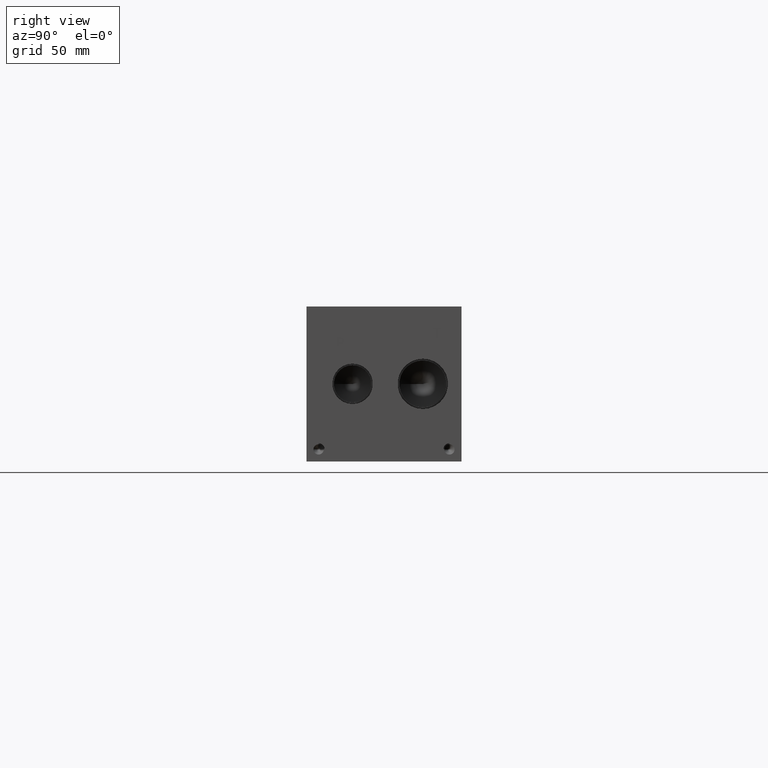
[diagram: clean part render]
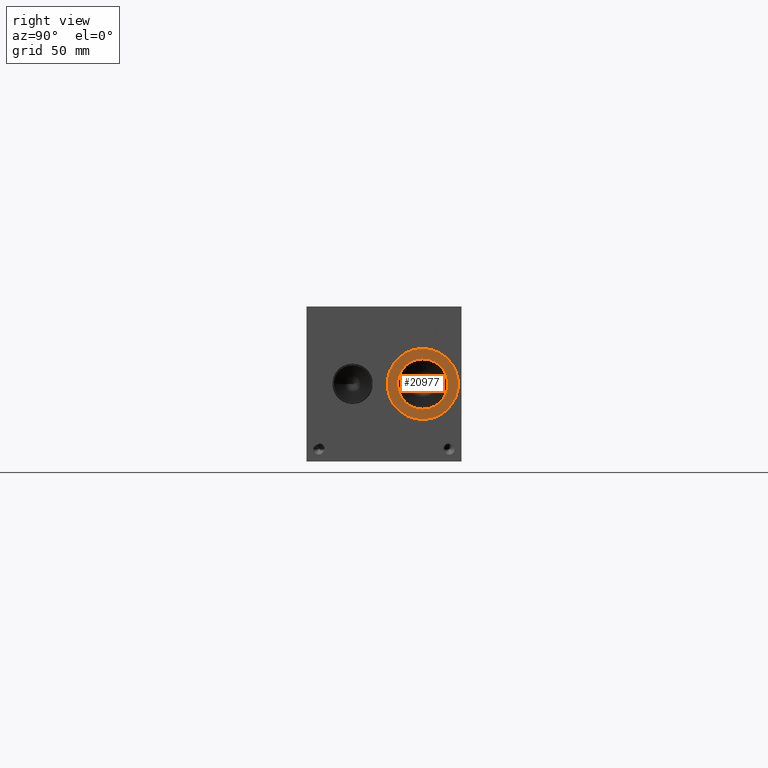
[diagram: same view with one face highlighted and labeled with its STEP entity id]
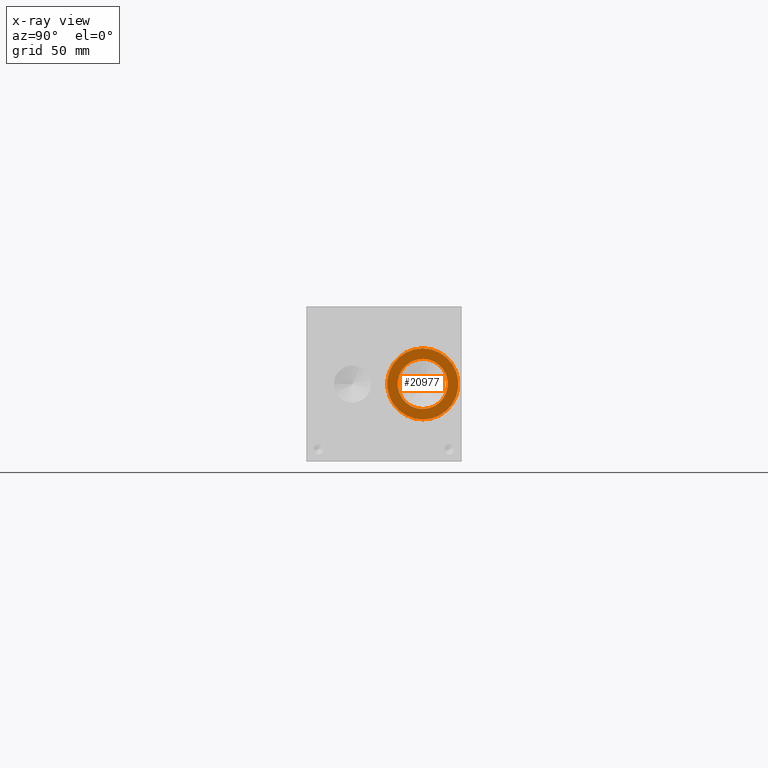
[diagram: x-ray of the same camera — body ghosted, the highlighted face saturated]
A machine part, right view. The second image highlights one B-rep face of the part: STEP entity #20977.
The next image is the same camera in x-ray: the body ghosted, the highlighted face saturated — about 0% of this face is hidden behind the body in this view.
In plain terms, the highlighted planar face has unit normal (-1, 0, 0).
Its self-contained STEP definition (entity closure, byte-faithful):
#1029=CIRCLE('',#22318,23.2791);
#1030=CIRCLE('',#22319,23.2791);
#1031=CIRCLE('',#22321,16.4973);
#1032=CIRCLE('',#22322,16.4973);
#1915=FACE_BOUND('',#4213,.T.);
#2954=FACE_OUTER_BOUND('',#4212,.T.);
#4212=EDGE_LOOP('',(#17935,#17936));
#4213=EDGE_LOOP('',(#17937,#17938));
#9709=VERTEX_POINT('',#36004);
#9710=VERTEX_POINT('',#36006);
#9711=VERTEX_POINT('',#36010);
#9712=VERTEX_POINT('',#36011);
#12564=EDGE_CURVE('',#9709,#9710,#1029,.T.);
#12565=EDGE_CURVE('',#9710,#9709,#1030,.T.);
#12566=EDGE_CURVE('',#9711,#9712,#1031,.T.);
#12567=EDGE_CURVE('',#9712,#9711,#1032,.T.);
#17935=ORIENTED_EDGE('',*,*,#12565,.F.);
#17936=ORIENTED_EDGE('',*,*,#12564,.F.);
#17937=ORIENTED_EDGE('',*,*,#12566,.T.);
#17938=ORIENTED_EDGE('',*,*,#12567,.T.);
#19332=PLANE('',#22320);
#20977=ADVANCED_FACE('',(#2954,#1915),#19332,.F.);
#22318=AXIS2_PLACEMENT_3D('',#36007,#26686,#26687);
#22319=AXIS2_PLACEMENT_3D('',#36008,#26688,#26689);
#22320=AXIS2_PLACEMENT_3D('',#36009,#26690,#26691);
#22321=AXIS2_PLACEMENT_3D('',#36012,#26692,#26693);
#22322=AXIS2_PLACEMENT_3D('',#36013,#26694,#26695);
#26686=DIRECTION('center_axis',(-1.,0.,0.));
#26687=DIRECTION('ref_axis',(0.,0.,1.));
#26688=DIRECTION('center_axis',(-1.,0.,0.));
#26689=DIRECTION('ref_axis',(0.,0.,1.));
#26690=DIRECTION('center_axis',(-1.,0.,0.));
#26691=DIRECTION('ref_axis',(0.,0.,1.));
#26692=DIRECTION('center_axis',(-1.,0.,0.));
#26693=DIRECTION('ref_axis',(0.,0.,1.));
#26694=DIRECTION('center_axis',(-1.,0.,0.));
#26695=DIRECTION('ref_axis',(0.,0.,1.));
#36004=CARTESIAN_POINT('',(456.4126,76.2,74.0791));
#36006=CARTESIAN_POINT('',(456.4126,76.2,27.5209));
#36007=CARTESIAN_POINT('Origin',(456.4126,76.2,50.8));
#36008=CARTESIAN_POINT('Origin',(456.4126,76.2,50.8));
#36009=CARTESIAN_POINT('Origin',(456.4126,76.2,34.3027));
#36010=CARTESIAN_POINT('',(456.4126,76.2,34.3027));
#36011=CARTESIAN_POINT('',(456.4126,76.2,67.2973));
#36012=CARTESIAN_POINT('Origin',(456.4126,76.2,50.8));
#36013=CARTESIAN_POINT('Origin',(456.4126,76.2,50.8));